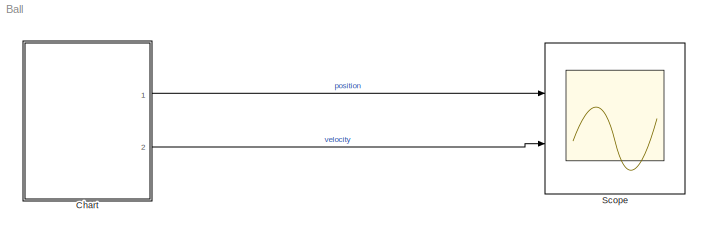
MODEL Ball
KIND model
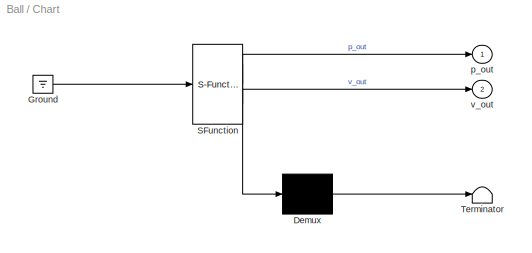
BLOCK [SubSystem] Chart
  ErrorFcn = Stateflow.Translate.translate
  PermitHierarchicalResolution = ExplicitOnly
  Ports = [0, 2]
  RequestExecContextInheritance = off
  SFBlockType = Chart
  SID = 1
  TreatAsAtomicUnit = on
BLOCK [Demux] Chart/ Demux 
  Outputs = 1
  Ports = [1, 1]
  SID = 1::77
BLOCK [Ground] Chart/ Ground 
  SID = 1::79
BLOCK [S-Function] Chart/ SFunction 
  EnableBusSupport = on
  FunctionName = sf_sfun
  PortCounts = [1 3]
  Ports = [1, 3]
  SFcnIsStateOwnerBlock = off
  SFunctionDeploymentMode = off
  SID = 1::76
  Tag = Stateflow S-Function Ball 3
BLOCK [Terminator] Chart/ Terminator 
  SID = 1::78
BLOCK [Outport] Chart/p_out
  IconDisplay = Port number
  SID = 1::65
BLOCK [Outport] Chart/v_out
  IconDisplay = Port number
  Port = 2
  SID = 1::66
BLOCK [Scope] Scope
  Floating = off
  NumInputPorts = 2
  Ports = [2]
  SID = 2
  ScopeSpecificationString = Simulink.scopes.TimeScopeBlockCfg('CurrentConfiguration', extmgr.ConfigurationSet(extmgr.Configuration('Core','General UI',true),extmgr.Configuration('Core','Source UI',true),extmgr.Configuration('Sources','WiredSimulink',true,'DataLoggingLimitDataPoints',true,'DataLoggingSaveFormat','Array','DataLoggingDecimation','1','DataLoggingDecimateData',true),extmgr.Configuration('Visuals','Time Domain',tr...<+2200ch>
LINE Chart/ Demux :1 -> Chart/ Terminator :1
LINE Chart/ Ground :1 -> Chart/ SFunction :1
LINE Chart/ SFunction :1 -> Chart/ Demux :1
LINE Chart/ SFunction :2 -> Chart/p_out:1
LINE Chart/ SFunction :3 -> Chart/v_out:1
LINE Chart:1 -> Scope:1
LINE Chart:2 -> Scope:2
CHART Chart states=1 transitions=2
  STATE_LABEL 'Falling\\nduring:\\n    p_dot=v;\\n    v_dot=-9.81;\\n    p_out=p;\\n    v_out=v;\\n'
